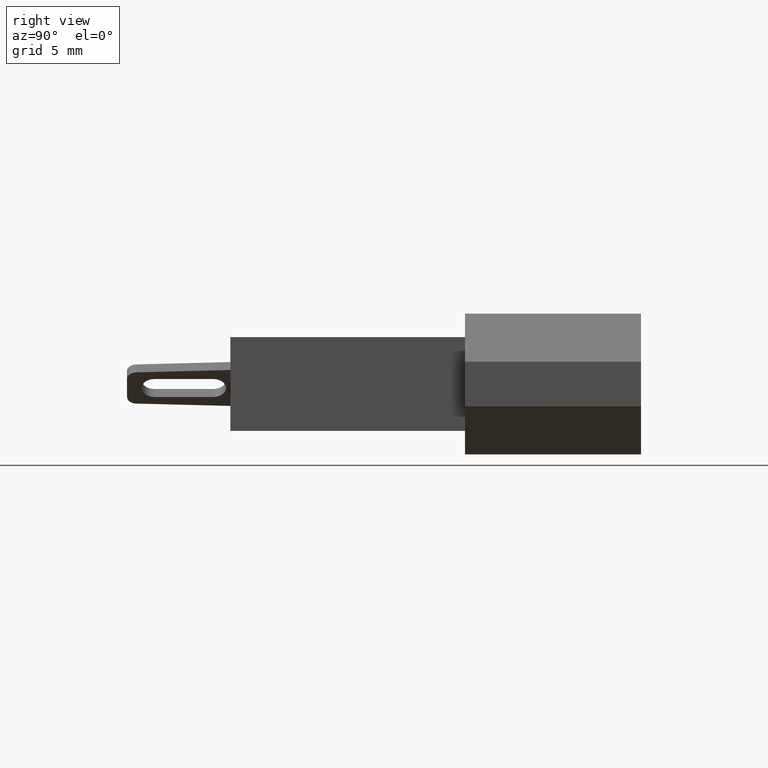
[diagram: clean part render]
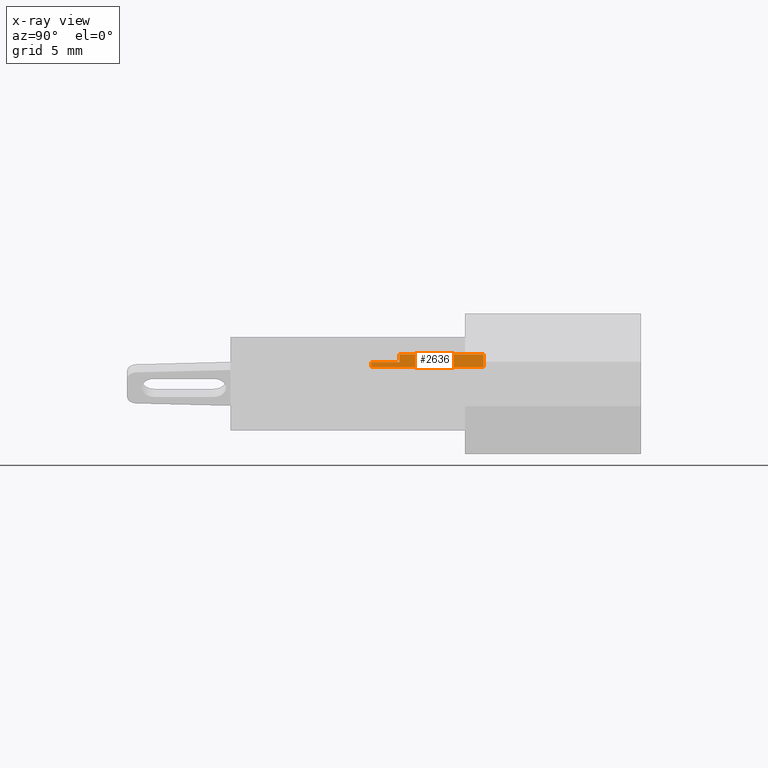
[diagram: x-ray — body ghosted, one internal face saturated and labeled with its STEP entity id]
A machine part, right view, then the same camera in x-ray: the body is ghosted and one INTERNAL B-rep face — a face not visible from any outside direction — is saturated and labeled: STEP entity #2636.
In plain terms, the highlighted planar face has unit normal (0.7071, 0, 0.7071).
Its self-contained STEP definition (entity closure, byte-faithful):
#16 = CARTESIAN_POINT ( 'NONE',  ( 19.90450340712701700, -5.080000000000001000, 1.164732449822659700 ) ) ;
#34 = EDGE_CURVE ( 'NONE', #3498, #5610, #661, .T. ) ;
#268 = DIRECTION ( 'NONE',  ( 0.0000000000000000000, 1.000000000000000000, 0.0000000000000000000 ) ) ;
#421 = DIRECTION ( 'NONE',  ( 0.7071067811865479100, 0.0000000000000000000, -0.7071067811865470200 ) ) ;
#450 = DIRECTION ( 'NONE',  ( 0.7071067811865464600, -0.0000000000000000000, 0.7071067811865486800 ) ) ;
#661 = LINE ( 'NONE', #6744, #8122 ) ;
#831 = FACE_OUTER_BOUND ( 'NONE', #883, .T. ) ;
#883 = EDGE_LOOP ( 'NONE', ( #8307, #3013, #2763, #8478, #6696, #5328, #6746 ) ) ;
#921 = CARTESIAN_POINT ( 'NONE',  ( 19.90450340712701700, -5.080000000000001000, 1.164732449822659700 ) ) ;
#1138 = EDGE_CURVE ( 'NONE', #9136, #5122, #4379, .T. ) ;
#1469 = VERTEX_POINT ( 'NONE', #5789 ) ;
#1787 = CARTESIAN_POINT ( 'NONE',  ( 19.88384204896855000, -12.69999999999999900, 1.185393807981128400 ) ) ;
#2589 = LINE ( 'NONE', #6233, #9271 ) ;
#2636 = ADVANCED_FACE ( 'NONE', ( #831 ), #4759, .F. ) ;
#2763 = ORIENTED_EDGE ( 'NONE', *, *, #6374, .F. ) ;
#2866 = VERTEX_POINT ( 'NONE', #16 ) ;
#2960 = CARTESIAN_POINT ( 'NONE',  ( 19.45688015853815500, -3.556000000000000000, 1.612355698411525000 ) ) ;
#3013 = ORIENTED_EDGE ( 'NONE', *, *, #34, .F. ) ;
#3020 = CARTESIAN_POINT ( 'NONE',  ( 19.88384204896855000, -5.099168844320193900, 1.185393807981128600 ) ) ;
#3386 = VECTOR ( 'NONE', #5935, 1000.000000000000000 ) ;
#3498 = VERTEX_POINT ( 'NONE', #7591 ) ;
#3571 = DIRECTION ( 'NONE',  ( 0.0000000000000000000, 1.000000000000000000, 0.0000000000000000000 ) ) ;
#3744 = CARTESIAN_POINT ( 'NONE',  ( 19.89759758253472200, -5.086337406446097600, 1.171638274414954300 ) ) ;
#4379 = LINE ( 'NONE', #1787, #8456 ) ;
#4380 = CARTESIAN_POINT ( 'NONE',  ( 19.45688015853815500, 1.015999999999999600, 1.612355698411524400 ) ) ;
#4386 = EDGE_CURVE ( 'NONE', #9136, #2866, #6082, .T. ) ;
#4531 = EDGE_CURVE ( 'NONE', #1469, #5122, #5319, .T. ) ;
#4759 = PLANE ( 'NONE',  #8157 ) ;
#5122 = VERTEX_POINT ( 'NONE', #7775 ) ;
#5319 = LINE ( 'NONE', #7054, #8512 ) ;
#5328 = ORIENTED_EDGE ( 'NONE', *, *, #4531, .F. ) ;
#5406 = LINE ( 'NONE', #2960, #3386 ) ;
#5505 = DIRECTION ( 'NONE',  ( 0.7071067811865486800, 0.0000000000000000000, -0.7071067811865464600 ) ) ;
#5610 = VERTEX_POINT ( 'NONE', #7683 ) ;
#5789 = CARTESIAN_POINT ( 'NONE',  ( 19.45688015853815500, -3.556000000000000000, 1.612355698411525000 ) ) ;
#5908 = VERTEX_POINT ( 'NONE', #8835 ) ;
#5935 = DIRECTION ( 'NONE',  ( -0.0000000000000000000, 1.000000000000000000, -0.0000000000000000000 ) ) ;
#6082 = B_SPLINE_CURVE_WITH_KNOTS ( 'NONE', 3,
 ( #3020, #8074, #3744, #921 ),
 .UNSPECIFIED., .F., .F.,
 ( 4, 4 ),
 ( 0.0006940124607052473200, 0.0007289083300417293100 ),
 .UNSPECIFIED. ) ;
#6198 = DIRECTION ( 'NONE',  ( 0.7071067811865486800, 8.713498840270157000E-017, -0.7071067811865464600 ) ) ;
#6233 = CARTESIAN_POINT ( 'NONE',  ( 19.88384204896855000, -5.080000000000001000, 1.185393807981128600 ) ) ;
#6374 = EDGE_CURVE ( 'NONE', #2866, #3498, #2589, .T. ) ;
#6572 = DIRECTION ( 'NONE',  ( 0.7071067811865479100, 0.0000000000000000000, -0.7071067811865470200 ) ) ;
#6696 = ORIENTED_EDGE ( 'NONE', *, *, #1138, .T. ) ;
#6728 = EDGE_CURVE ( 'NONE', #1469, #5908, #5406, .T. ) ;
#6744 = CARTESIAN_POINT ( 'NONE',  ( 20.17121024484276100, -12.69999999999999900, 0.8980256121069167800 ) ) ;
#6746 = ORIENTED_EDGE ( 'NONE', *, *, #6728, .T. ) ;
#6926 = CARTESIAN_POINT ( 'NONE',  ( 19.88384204896855000, -12.69999999999999900, 1.185393807981128400 ) ) ;
#6964 = VECTOR ( 'NONE', #6572, 1000.000000000000100 ) ;
#7054 = CARTESIAN_POINT ( 'NONE',  ( 19.45688015853815500, -3.556000000000000000, 1.612355698411524400 ) ) ;
#7591 = CARTESIAN_POINT ( 'NONE',  ( 20.17121024484276100, -5.080000000000001000, 0.8980256121069167800 ) ) ;
#7683 = CARTESIAN_POINT ( 'NONE',  ( 20.17121024484276100, 1.015999999999999600, 0.8980256121069167800 ) ) ;
#7764 = LINE ( 'NONE', #4380, #6964 ) ;
#7775 = CARTESIAN_POINT ( 'NONE',  ( 19.88384204896855000, -3.556000000000000000, 1.185393807981128600 ) ) ;
#8074 = CARTESIAN_POINT ( 'NONE',  ( 19.89071086370125500, -5.092728139206953700, 1.178524993248421400 ) ) ;
#8122 = VECTOR ( 'NONE', #3571, 1000.000000000000000 ) ;
#8157 = AXIS2_PLACEMENT_3D ( 'NONE', #6926, #450, #5505 ) ;
#8307 = ORIENTED_EDGE ( 'NONE', *, *, #8666, .T. ) ;
#8456 = VECTOR ( 'NONE', #268, 1000.000000000000000 ) ;
#8478 = ORIENTED_EDGE ( 'NONE', *, *, #4386, .F. ) ;
#8512 = VECTOR ( 'NONE', #421, 1000.000000000000100 ) ;
#8635 = CARTESIAN_POINT ( 'NONE',  ( 19.88384204896855000, -5.099168844320193900, 1.185393807981128600 ) ) ;
#8666 = EDGE_CURVE ( 'NONE', #5908, #5610, #7764, .T. ) ;
#8835 = CARTESIAN_POINT ( 'NONE',  ( 19.45688015853815500, 1.015999999999999600, 1.612355698411525000 ) ) ;
#9136 = VERTEX_POINT ( 'NONE', #8635 ) ;
#9271 = VECTOR ( 'NONE', #6198, 999.9999999999998900 ) ;